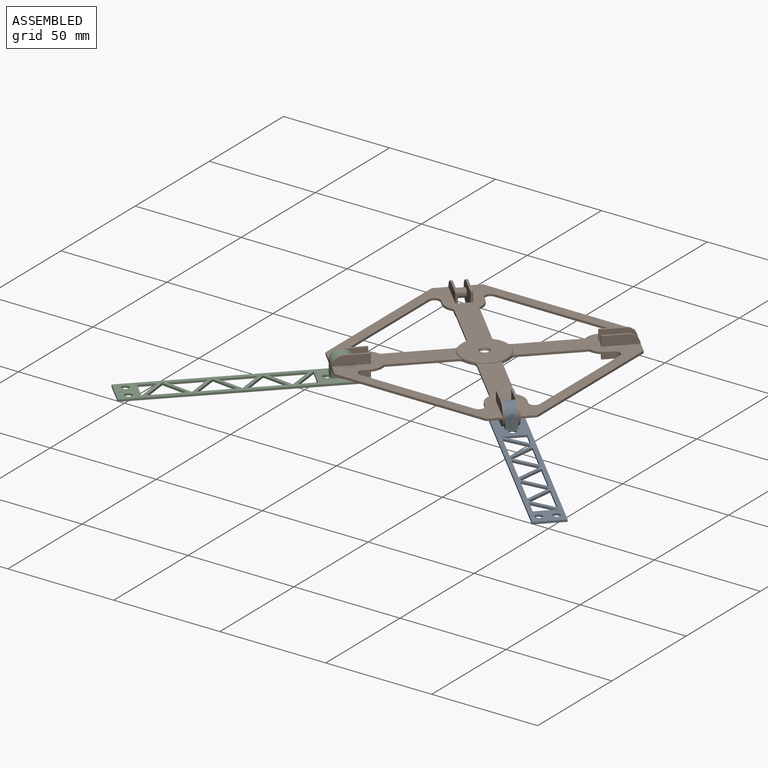
[diagram: assembled view]
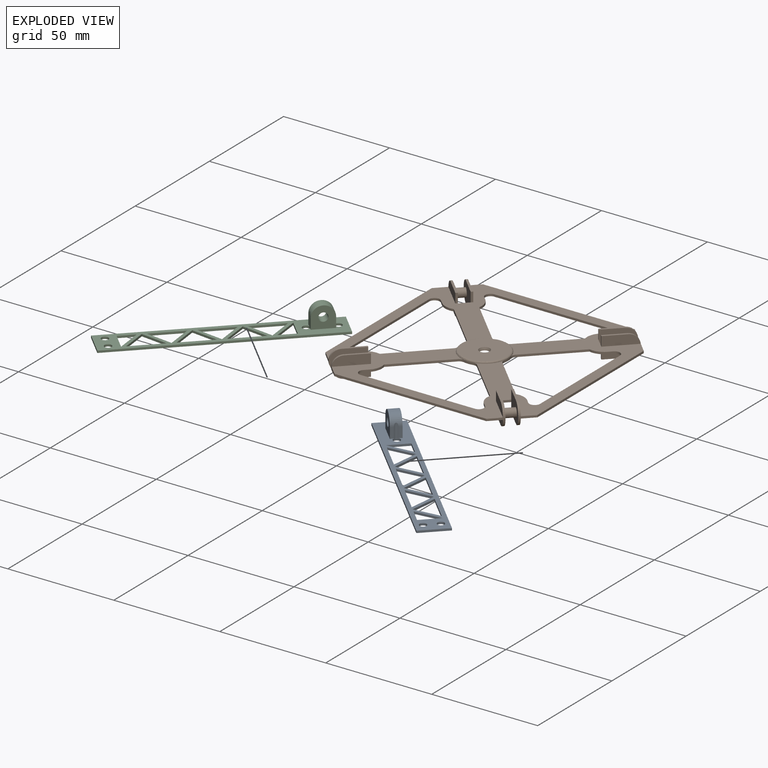
[diagram: exploded view]
GUIDED TOUR — MATED ASSEMBLY (Onshape document ca72b23011b49d8c94f7c284, AutoMate assembly ca72b23011b49d8c94f7c284_2f4b637b316b3382d49a34dc_831e26a900897d0720d0fa61_default)

This assembly has 3 components, labeled P0..P2 below (a component is one placed occurrence of a part; the same part can appear more than once), held together by 2 mates. A mate is a constraint between two components; its type names the relative motion it leaves free:
  REVOLUTE — leaves rotation about the listed axis free (a hinge).
Axis/direction vectors are unit vectors and 'through' points are millimeter coordinates, both in the assembly's world frame.

MATES
  1. REVOLUTE "Revolute 1": P0 <-> P1, axis (0.707, 0.707, 0.000) through (39.29, -39.38, -0.03) mm
  2. REVOLUTE "Revolute 2": P1 <-> P2, axis (0.707, -0.707, 0.000) through (-39.50, -39.38, -0.03) mm

ASSEMBLY ORDER
  1. P1 — the base component [order heuristic]
  2. P0 [order heuristic]
  3. P2 [order heuristic]
Order-tag legend:
  [order heuristic] — this assembly is geometrically interlocked (no collision-free removal order exists), so components are listed in mate-graph order; insertion feasibility is not verified.

Of the 3 components, 2 carry the full construction recipe — the FeatureScript program that regenerates the part's solid from scratch; the rest are supplied as boundary geometry only.
Each toured component is shown spotlighted twice — in the assembled view, then in the exploded view, where a leader line traces a displaced component back to its assembled socket (saturated green if recipe-attached, orange if geometry-only; every other component desaturated gray) — followed by its recipe or geometry summary and the mates that hold it.
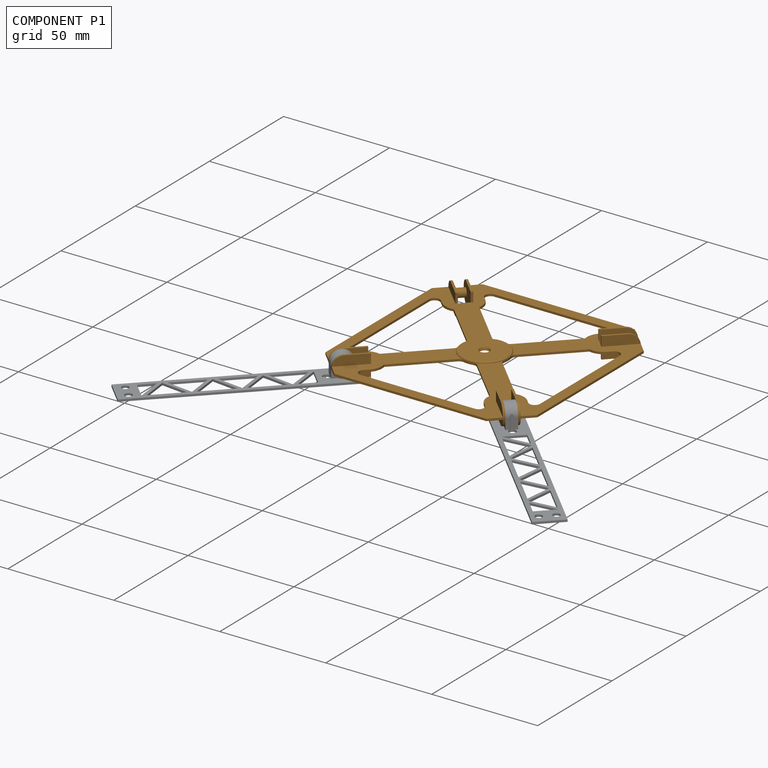
[diagram: component P1 — assembled]
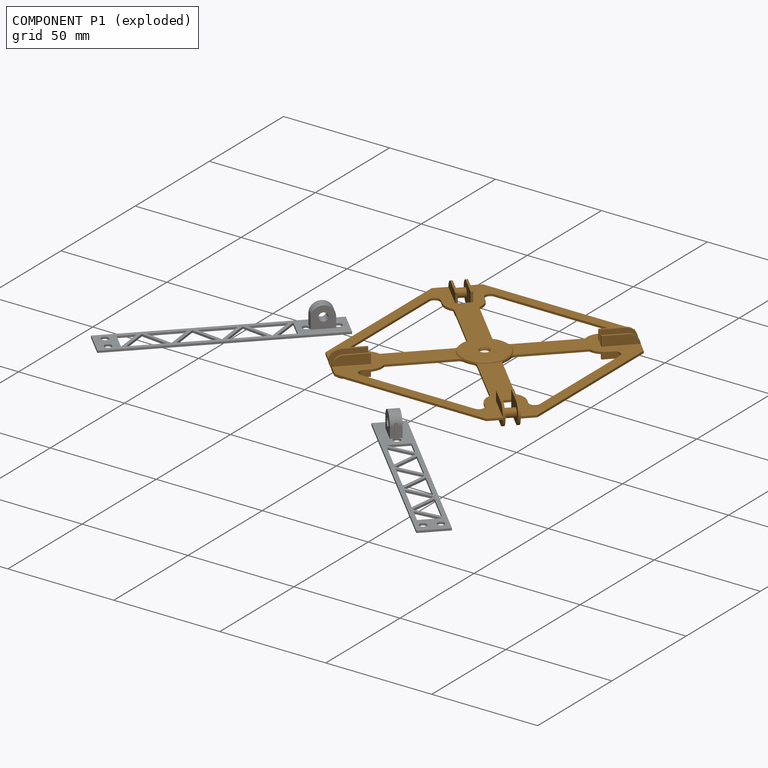
[diagram: component P1 — exploded]
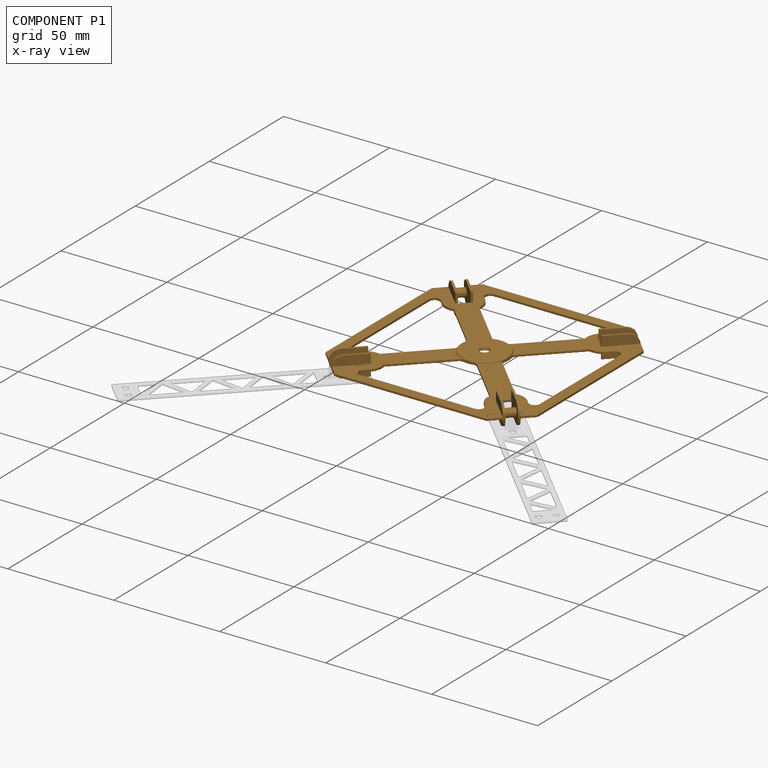
[diagram: component P1 — x-ray view]
COMPONENT P1 — geometry summary (no construction recipe available for this part):
  bounding box: 100.0 x 100.0 x 10.0 mm
  B-rep topology: 1 solid, 131 faces, 738 edges
  volume: 5503 mm^3 (5% of its bounding box)
  symmetry: 4-fold rotationally symmetric about the z axis; mirror-symmetric across its x mid-plane, y mid-plane
Held by: REVOLUTE mate "Revolute 1" to P0; REVOLUTE mate "Revolute 2" to P2.
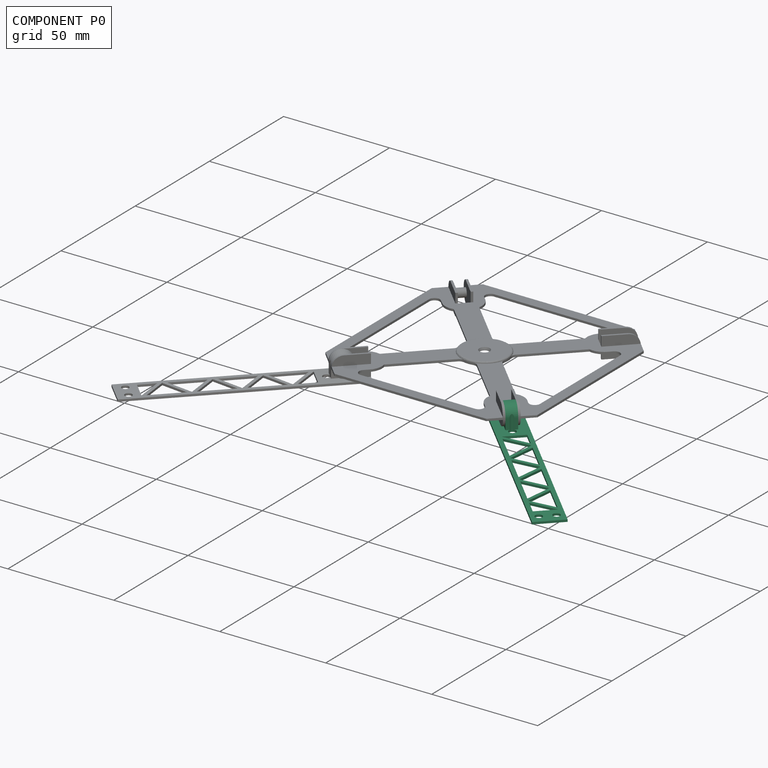
[diagram: component P0 — assembled]
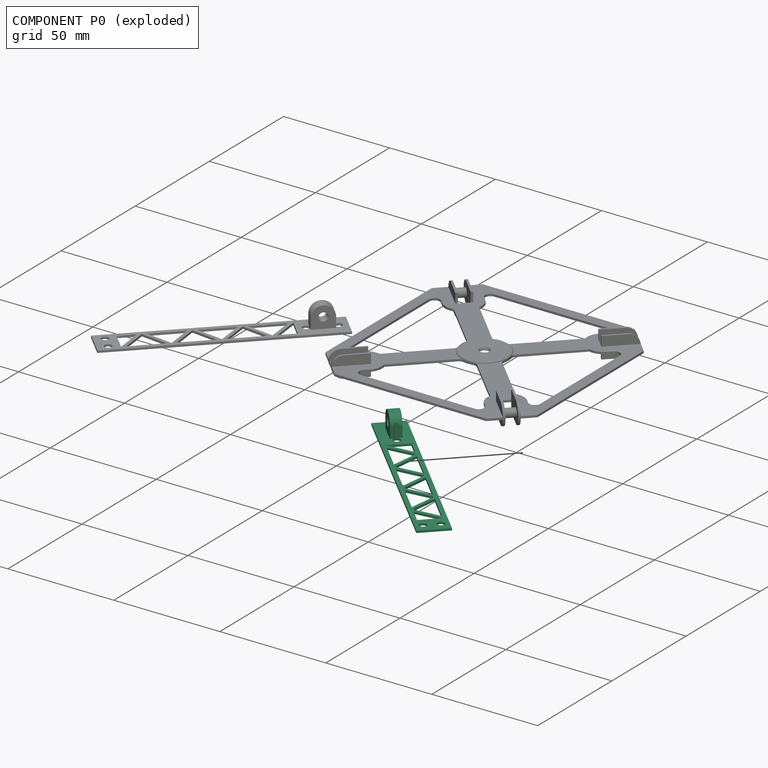
[diagram: component P0 — exploded]
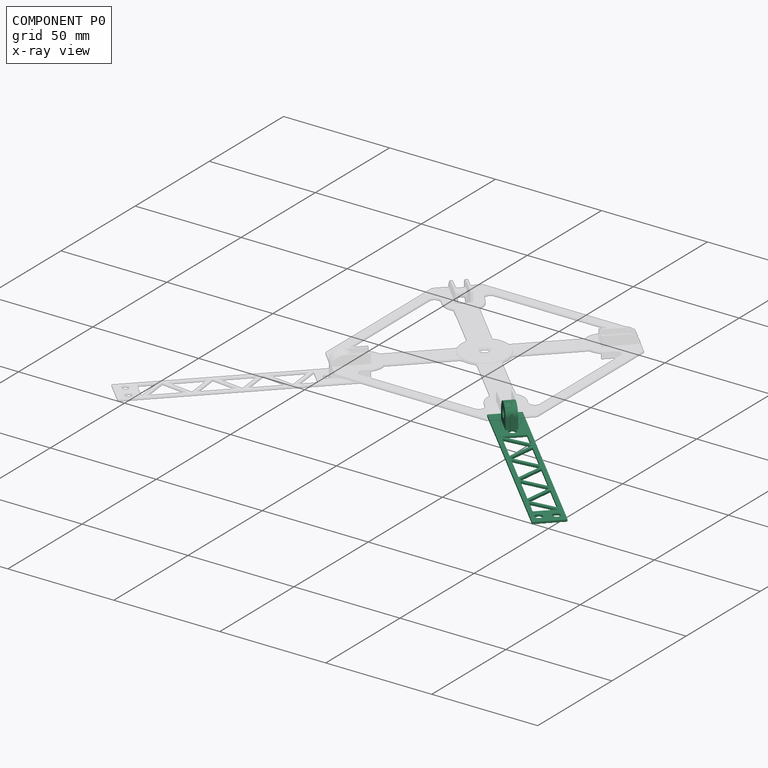
[diagram: component P0 — x-ray view]
COMPONENT P0 — recipe-attached (CADFS 00658230, mesh-verified: the recipe's output STEP matches this component's geometry to below the mesh-comparison resolution (tessellation chordal tolerance ~0.152 mm)).
Held by: REVOLUTE mate "Revolute 1" to P1.
Construction recipe (FeatureScript — the CAD program that rebuilds this solid; sketch coordinates are in the units given by the * unit suffixes, e.g. mm):

FeatureScript 1511;
import(path : "onshape/std/geometry.fs", version : "1511.0");
import(path : "onshape/std/common.fs", version : "1511.0");
const mm = millimeter;
const VERTEX = EntityType.VERTEX;
const EDGE = EntityType.EDGE;
const FACE = EntityType.FACE;
const BODY = EntityType.BODY;
function v(x, y){return vector(x, y);}
function OD(order){return orderDisambiguation(order);}
function OSD(set){return originalSetDisambiguation(set);}
function TD(topology){return topologyDisambiguation(topology);}
function TDD(query){return trueDependencyDisambiguation(query);}
function sQuery(a, b, c) {return sketchEntityQuery(a, b, c);}

annotation { "Feature Type Name" : "Feature", "Feature Type Description" : "" }
export const myFeature = defineFeature(function(context is Context, id is Id, definition is map)
    precondition{}
    {
        {
            var Q0;
            Q0=qCreatedBy(makeId("Front.planeOp"),FACE);
            var sketch = newSketch(context, id + "F0", { "sketchPlane" : qUnion([Q0])});
            skPoint(sketch, "E0.middle", {"position": v(0, 0) * mm});
            skLineSegment(sketch, "E1.top", {"start": v(-7, -50) * mm, "end": v(7, -50) * mm});
            skLineSegment(sketch, "E1.right", {"start": v(7, 50) * mm, "end": v(7, -50) * mm});
            skLineSegment(sketch, "E2.0", {"start": v(-2.5, -34.5) * mm, "end": v(-0.9, -34.5) * mm});
            skLineSegment(sketch, "E3.0", {"start": v(-2.5, -44.5) * mm, "end": v(-0.9, -44.5) * mm});
            skLineSegment(sketch, "E4", {"start": v(2.5, -34.5) * mm, "end": v(2.5, -44.5) * mm});
            skLineSegment(sketch, "E5", {"start": v(-2.5, -34.5) * mm, "end": v(-2.5, -44.5) * mm});
            skLineSegment(sketch, "E6", {"start": v(6, 20.37) * mm, "end": v(6, 20.37) * mm});
            skLineSegment(sketch, "E7", {"start": v(-7, 50) * mm, "end": v(7, 50) * mm});
            skLineSegment(sketch, "E8", {"start": v(-7, -50) * mm, "end": v(-7, 50) * mm});
            skLineSegment(sketch, "E9", {"start": v(5, -29) * mm, "end": v(-5, -29) * mm});
            skLineSegment(sketch, "E10", {"start": v(-5, -29) * mm, "end": v(5, -21.1) * mm});
            skLineSegment(sketch, "E11", {"start": v(5, -21.1) * mm, "end": v(5, -29) * mm});
            skLineSegment(sketch, "E12", {"start": v(-5, -27) * mm, "end": v(5, -19.1) * mm});
            skLineSegment(sketch, "E13", {"start": v(-5, -11.2) * mm, "end": v(5, -19.1) * mm});
            skLineSegment(sketch, "E14", {"start": v(-5, -27) * mm, "end": v(-5, -11.2) * mm});
            skLineSegment(sketch, "E15", {"start": v(-5, -9.2) * mm, "end": v(5, -17.1) * mm});
            skLineSegment(sketch, "E16", {"start": v(5, -17.1) * mm, "end": v(5, -1.29) * mm});
            skLineSegment(sketch, "E17", {"start": v(5, -1.29) * mm, "end": v(-5, -9.2) * mm});
            skLineSegment(sketch, "E18.0.1.0", {"start": v(5, 2.71) * mm, "end": v(5, 18.52) * mm});
            skLineSegment(sketch, "E18.0.1.1", {"start": v(-5, 10.62) * mm, "end": v(5, 2.71) * mm});
            skLineSegment(sketch, "E18.0.1.2", {"start": v(-5, 8.62) * mm, "end": v(5, 0.71) * mm});
            skLineSegment(sketch, "E18.0.1.3", {"start": v(-5, -7.2) * mm, "end": v(5, 0.71) * mm});
            skLineSegment(sketch, "E18.0.1.4", {"start": v(5, 18.52) * mm, "end": v(-5, 10.62) * mm});
            skLineSegment(sketch, "E18.0.1.5", {"start": v(-5, -7.2) * mm, "end": v(-5, 8.62) * mm});
            skLineSegment(sketch, "E18.0.2.0", {"start": v(5, 22.52) * mm, "end": v(5, 38.33) * mm});
            skLineSegment(sketch, "E18.0.2.1", {"start": v(-5, 30.43) * mm, "end": v(5, 22.52) * mm});
            skLineSegment(sketch, "E18.0.2.2", {"start": v(-5, 28.43) * mm, "end": v(5, 20.52) * mm});
            skLineSegment(sketch, "E18.0.2.3", {"start": v(-5, 12.62) * mm, "end": v(5, 20.52) * mm});
            skLineSegment(sketch, "E18.0.2.4", {"start": v(5, 38.33) * mm, "end": v(-5, 30.43) * mm});
            skLineSegment(sketch, "E18.0.2.5", {"start": v(-5, 12.62) * mm, "end": v(-5, 28.43) * mm});
            skLineSegment(sketch, "E18.0.3.3", {"start": v(-5, 32.43) * mm, "end": v(5, 40.33) * mm});
            skLineSegment(sketch, "E18.0.3.5", {"start": v(-5, 32.43) * mm, "end": v(-5, 40.33) * mm});
            skLineSegment(sketch, "E19", {"start": v(5, 40.33) * mm, "end": v(-5, 40.33) * mm});
            skCircle(sketch, "E20", {"center": v(3.5, 45.17) * mm, "radius": 1.64 * mm});
            skCircle(sketch, "E21.MirrorC", {"center": v(-3.5, 45.17) * mm, "radius": 1.64 * mm});
            skCircle(sketch, "E22", {"center": v(0, -33.12) * mm, "radius": 1.64 * mm});
            skLineSegment(sketch, "E23.trimOffspring", {"start": v(0.9, -34.5) * mm, "end": v(2.5, -34.5) * mm});
            skCircle(sketch, "E24.MirrorC", {"center": v(0, -45.88) * mm, "radius": 1.64 * mm});
            skLineSegment(sketch, "E25.trimOffspring", {"start": v(0.9, -44.5) * mm, "end": v(2.5, -44.5) * mm});
            skSolve(sketch);
        }
        {
            var Q0;
            {var subQ5=sQuery(id+"F0.wireOp",EDGE,"E3.0");Q0=makeQuery(id+"F0.imprint","IMPRINT",FACE,{"disambiguationData":[TD([[makeQuery(id+"F0.imprint","IMPRINT",EDGE,{"derivedFrom":subQ5}),1.0]])]});}
            var Q1;
            Q1=makeQuery(id+"F0.imprint","IMPRINT",FACE,{"disambiguationData":[TD([[makeQuery(id+"F0.imprint","IMPRINT",EDGE,{"derivedFrom":sQuery(id+"F0.wireOp",EDGE,"E1.top")}),1.0]])]});
            extrude(context, id + "F1", {"entities" : qUnion([Q0, Q1]), "depth" : 1 * mm, "offsetDistance" : 25 * mm});
        }
        {
            var Q0;
            Q0=makeQuery(id+"F0.imprint","IMPRINT",FACE,{"disambiguationData":[TD([[makeQuery(id+"F0.imprint","IMPRINT",EDGE,{"derivedFrom":sQuery(id+"F0.wireOp",EDGE,"893792fe-0780-4b24-a035-615e8d3175d2")}),-1.0]])]});
            var Q1;
            {var subQ5=sQuery(id+"F0.wireOp",EDGE,"E3.0");Q1=makeQuery(id+"F0.imprint","IMPRINT",FACE,{"disambiguationData":[TD([[makeQuery(id+"F0.imprint","IMPRINT",EDGE,{"derivedFrom":subQ5}),1.0]])]});}
            var Q2;
            {var subQ0=sQuery(id+"F0.wireOp",EDGE,"E2.0");var subQ1=sQuery(id+"F0.wireOp",EDGE,"893792fe-0780-4b24-a035-615e8d3175d2");var subQ2=makeQuery(id+"F0.imprint","INTERSECT",VERTEX,{"disambiguationData":[OD(1.0)],"derivedFrom":[subQ1,subQ0]});Q2=makeQuery(id+"F0.imprint","IMPRINT",FACE,{"disambiguationData":[TD([[makeQuery(id+"F0.imprint","IMPRINT",EDGE,{"disambiguationData":[TD([[subQ2,-1.0]])],"derivedFrom":subQ1}),-1.0]])]});}
            var Q3;
            {var subQ0=sQuery(id+"F0.wireOp",EDGE,"E2.0");var subQ1=sQuery(id+"F0.wireOp",EDGE,"893792fe-0780-4b24-a035-615e8d3175d2");var subQ2=makeQuery(id+"F0.imprint","INTERSECT",VERTEX,{"disambiguationData":[OD(0.0)],"derivedFrom":[subQ1,subQ0]});Q3=makeQuery(id+"F0.imprint","IMPRINT",FACE,{"disambiguationData":[TD([[makeQuery(id+"F0.imprint","IMPRINT",EDGE,{"disambiguationData":[TD([[subQ2,1.0]])],"derivedFrom":subQ1}),1.0]])]});}
            extrude(context, id + "F2", {"entities" : qUnion([Q0, Q1, Q2, Q3]), "operationType" : NewBodyOperationType.ADD, "oppositeDirection" : true, "depth" : 10 * mm, "offsetDistance" : 25 * mm});
        }
        {
            var Q0;
            Q0=makeQuery(id+"F2.opExtrude","SWEPT_FACE",FACE,{"disambiguationData":[OSD([sQuery(id+"F0.wireOp",EDGE,"E4")])]});
            var sketch = newSketch(context, id + "F3", { "sketchPlane" : qUnion([Q0])});
            skCircle(sketch, "E26", {"center": v(5, -39.5) * mm, "radius": 2 * mm});
            skLineSegment(sketch, "E27", {"start": v(10, -44.5) * mm, "end": v(10, -34.5) * mm});
            skLineSegment(sketch, "E28", {"start": v(10, -34.5) * mm, "end": v(5, -34.5) * mm});
            skLineSegment(sketch, "E29", {"start": v(10, -44.5) * mm, "end": v(5, -44.5) * mm});
            skArc(sketch, "E30", {"start": v(5, -44.5) * mm, "mid": v(10, -39.5) * mm, "end": v(5, -34.5) * mm});
            skSolve(sketch);
        }
        {
            var Q0;
            {var subQ0=sQuery(id+"F3.wireOp",EDGE,"E29");Q0=makeQuery(id+"F3.imprint","IMPRINT",FACE,{"disambiguationData":[TD([[makeQuery(id+"F3.imprint","IMPRINT",EDGE,{"derivedFrom":subQ0}),-1.0]])]});}
            var Q1;
            Q1=makeQuery(id+"F3.imprint","IMPRINT",FACE,{"disambiguationData":[TD([[makeQuery(id+"F3.imprint","IMPRINT",EDGE,{"derivedFrom":sQuery(id+"F3.wireOp",EDGE,"E26")}),1.0]])]});
            var Q2;
            {var subQ0=sQuery(id+"F3.wireOp",EDGE,"E28");Q2=makeQuery(id+"F3.imprint","IMPRINT",FACE,{"disambiguationData":[TD([[makeQuery(id+"F3.imprint","IMPRINT",EDGE,{"derivedFrom":subQ0}),1.0]])]});}
            extrude(context, id + "F4", {"entities" : qUnion([Q0, Q1, Q2]), "operationType" : NewBodyOperationType.REMOVE, "endBound" : BoundingType.THROUGH_ALL, "oppositeDirection" : true, "depth" : 25 * mm, "offsetDistance" : 25 * mm});
        }
    });
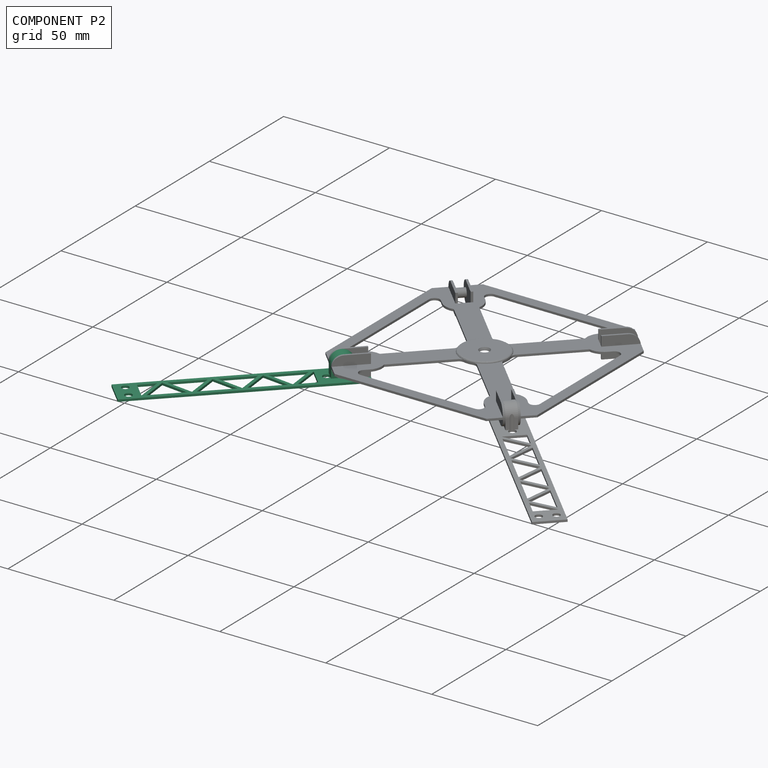
[diagram: component P2 — assembled]
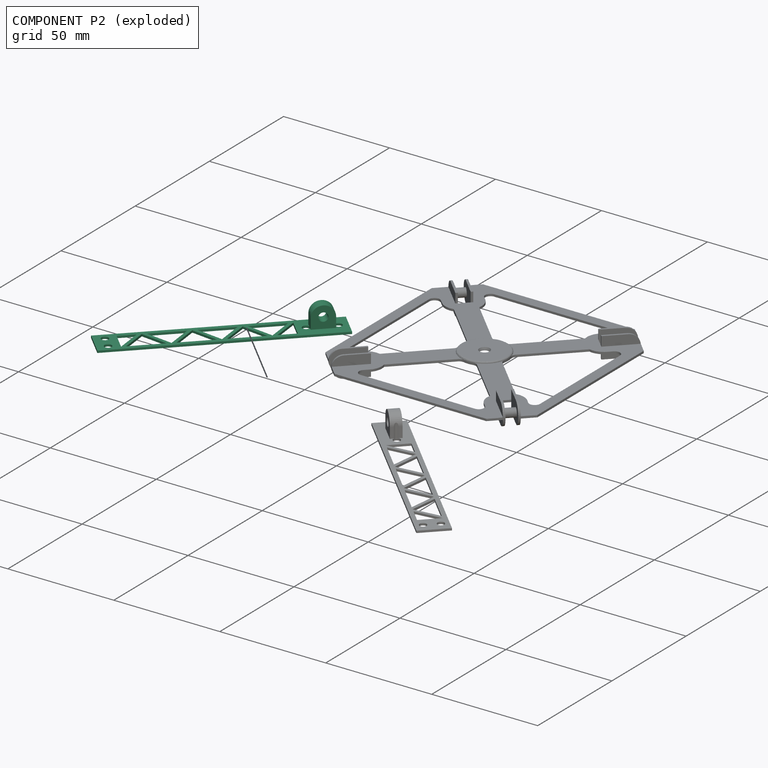
[diagram: component P2 — exploded]
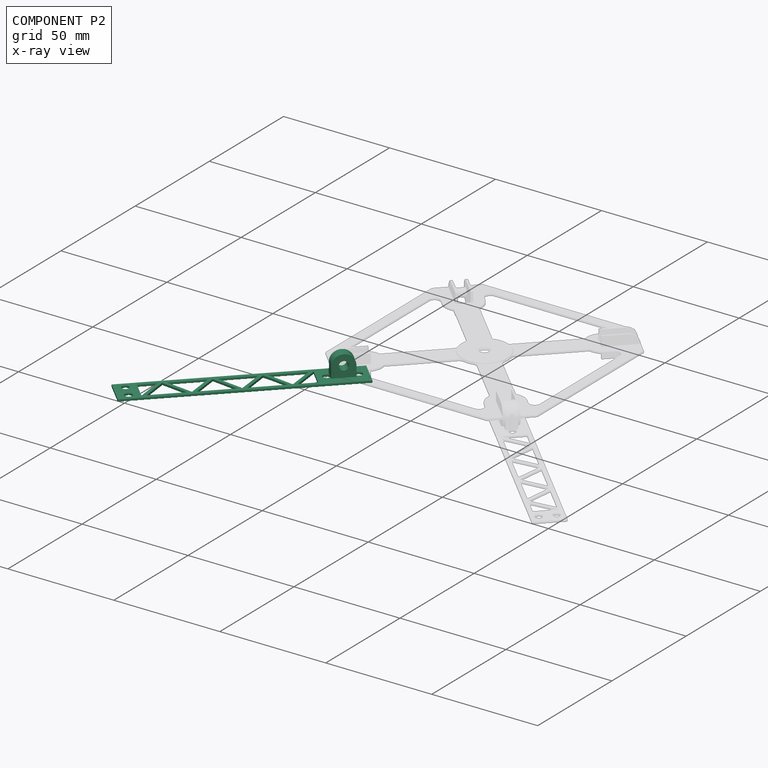
[diagram: component P2 — x-ray view]
COMPONENT P2 — same part as P0 (CADFS 00658230); its construction recipe is shown at P0.
Held by: REVOLUTE mate "Revolute 2" to P1.
PROVENANCE & LICENSES
Assembly (occurrences, transforms, mates, per-part STEP geometry): AutoMate dataset, Zenodo record 7776208, CC0.
Construction recipes: CADFS (HuggingFace VladPyatov/CADFS, CC-BY-4.0, layered over the ABC dataset), FeatureScript reconstruction programs keyed by ABC model id.
Join: ABC meta listings map ABC model id -> Onshape documentId; within a shared document, parts are matched by geometric signature (bounding-box dims + volume at 0.1% relative tolerance, exact B-rep face/solid counts).
Verification: 2 of this assembly's 3 components carry a recipe attachment, and every attachment is mesh-verified: the CADFS STEP and the AutoMate member STEP were compared as meshes in their shared local frame (symmetric sampled-point-to-mesh distance); worst across the 2 attachments: below the mesh-comparison resolution (tessellation chordal tolerance ~0.152 mm) on a 102 mm part.
Renders: orthographic iso camera (az 35 / el 25); the floor grid conveys scale (grid pitch printed in each image; no ruler). In the exploded view each component is displaced by its stored offset vector: the offsets alone carry the explosion direction (mate normal/axis signs are not orientation cues and do not encode it), and separation distances are assigned per mate-chain, not proportionally to assembly-order depth.
